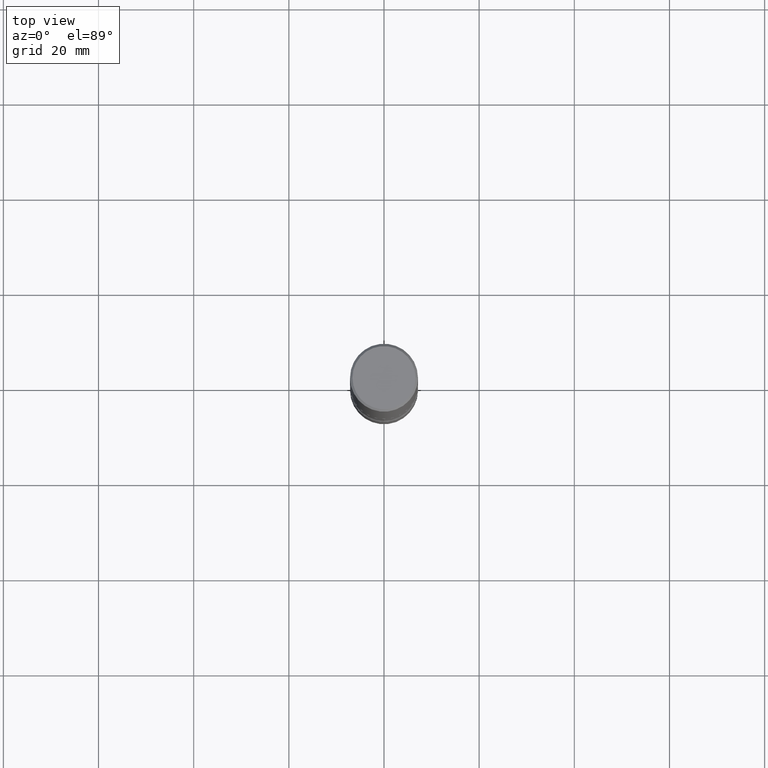
[diagram: clean part render]
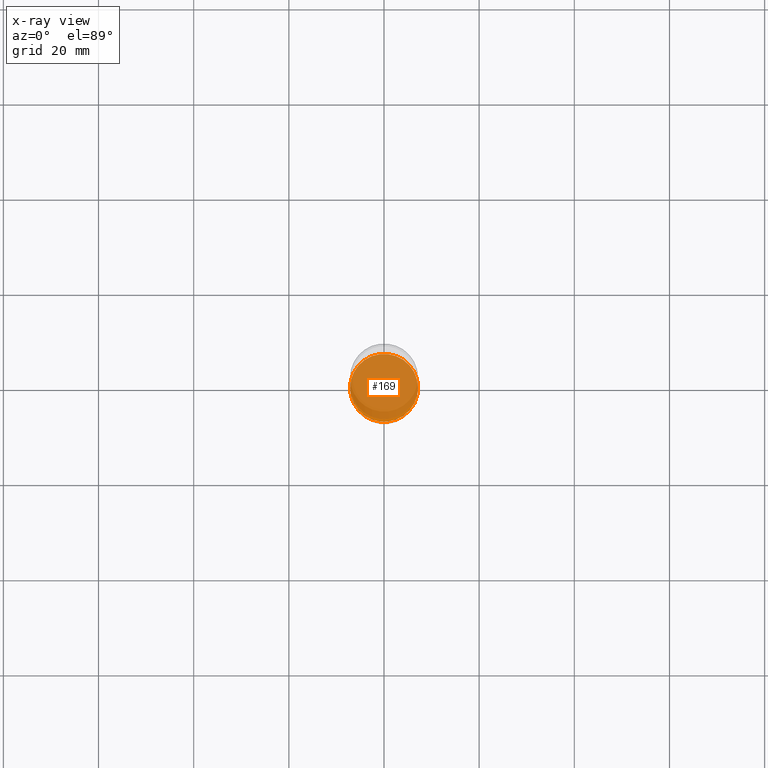
[diagram: x-ray — body ghosted, one internal face saturated and labeled with its STEP entity id]
A machine part, top view, then the same camera in x-ray: the body is ghosted and one INTERNAL B-rep face — a face not visible from any outside direction — is saturated and labeled: STEP entity #169.
In plain terms, the highlighted planar face has unit normal (0, -0, -1).
Its self-contained STEP definition (entity closure, byte-faithful):
#9 = ORIENTED_EDGE ( 'NONE', *, *, #388, .T. ) ;
#20 = AXIS2_PLACEMENT_3D ( 'NONE', #102, #144, #106 ) ;
#24 = VERTEX_POINT ( 'NONE', #170 ) ;
#60 = VERTEX_POINT ( 'NONE', #198 ) ;
#82 = AXIS2_PLACEMENT_3D ( 'NONE', #135, #405, #440 ) ;
#85 = CIRCLE ( 'NONE', #20, 0.2812500000000003331 ) ;
#102 = CARTESIAN_POINT ( 'NONE',  ( 1.192166043015254091E-28, -1.702097152686033664E-14, -4.875000000000000000 ) ) ;
#104 = FACE_OUTER_BOUND ( 'NONE', #143, .T. ) ;
#106 = DIRECTION ( 'NONE',  ( 1.000000000000000000, -6.982962677686268288E-15, 0.000000000000000000 ) ) ;
#135 = CARTESIAN_POINT ( 'NONE',  ( 1.192166043015254091E-28, -1.702097152686033664E-14, -4.875000000000000000 ) ) ;
#143 = EDGE_LOOP ( 'NONE', ( #9, #251 ) ) ;
#144 = DIRECTION ( 'NONE',  ( -2.445468806185136597E-29, 3.491481338843145583E-15, 1.000000000000000000 ) ) ;
#169 = ADVANCED_FACE ( 'NONE', ( #104 ), #217, .F. ) ;
#170 = CARTESIAN_POINT ( 'NONE',  ( -0.2812500000000003331, -1.693415611555167306E-14, -4.875000000000000000 ) ) ;
#198 = CARTESIAN_POINT ( 'NONE',  ( 0.2812500000000003331, -1.898492977995960152E-14, -4.875000000000000000 ) ) ;
#217 = PLANE ( 'NONE',  #476 ) ;
#244 = DIRECTION ( 'NONE',  ( -1.000000000000000000, 6.982962677686265922E-15, -4.876176775795935793E-29 ) ) ;
#251 = ORIENTED_EDGE ( 'NONE', *, *, #366, .T. ) ;
#355 = CARTESIAN_POINT ( 'NONE',  ( 1.192166043015254091E-28, -1.702097152686033664E-14, -4.875000000000000000 ) ) ;
#366 = EDGE_CURVE ( 'NONE', #24, #60, #527, .T. ) ;
#388 = EDGE_CURVE ( 'NONE', #60, #24, #85, .T. ) ;
#405 = DIRECTION ( 'NONE',  ( -2.445468806185136597E-29, 3.491481338843145583E-15, 1.000000000000000000 ) ) ;
#440 = DIRECTION ( 'NONE',  ( 1.000000000000000000, -6.982962677686268288E-15, 0.000000000000000000 ) ) ;
#476 = AXIS2_PLACEMENT_3D ( 'NONE', #355, #526, #244 ) ;
#526 = DIRECTION ( 'NONE',  ( 2.438088387897960049E-29, -3.491481338843145188E-15, -1.000000000000000000 ) ) ;
#527 = CIRCLE ( 'NONE', #82, 0.2812500000000003331 ) ;